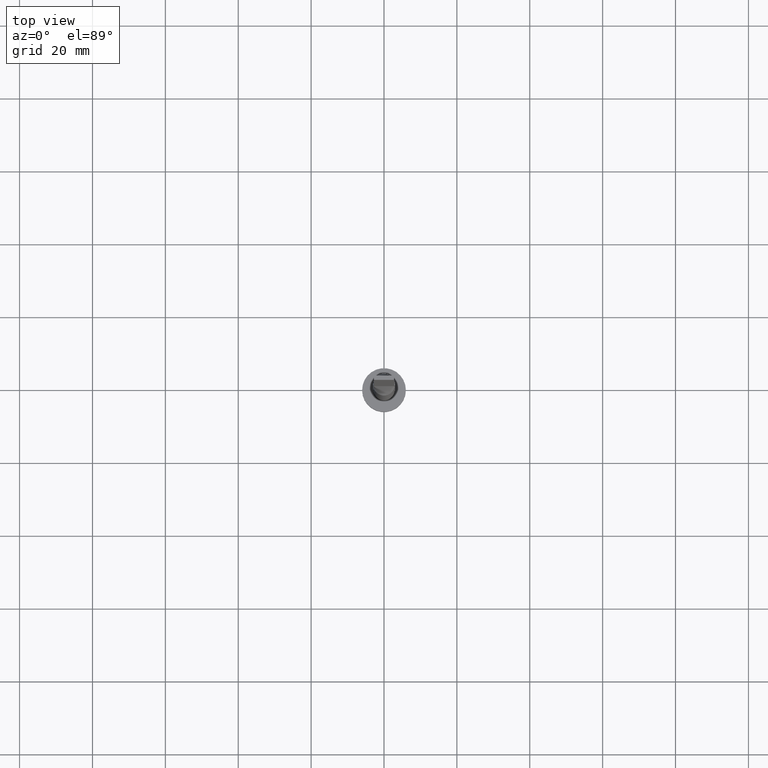
[diagram: clean part render]
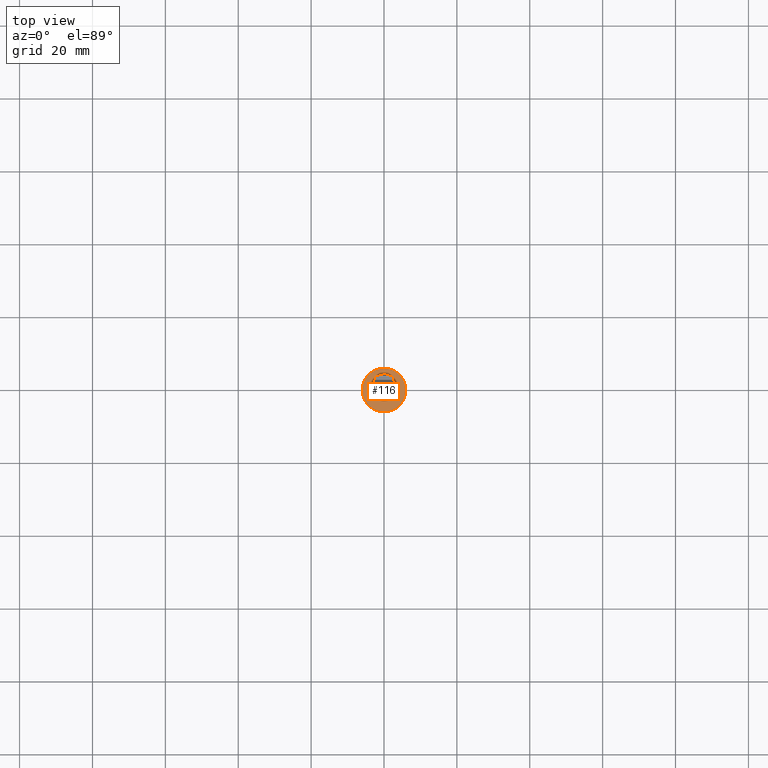
[diagram: same view with one face highlighted and labeled with its STEP entity id]
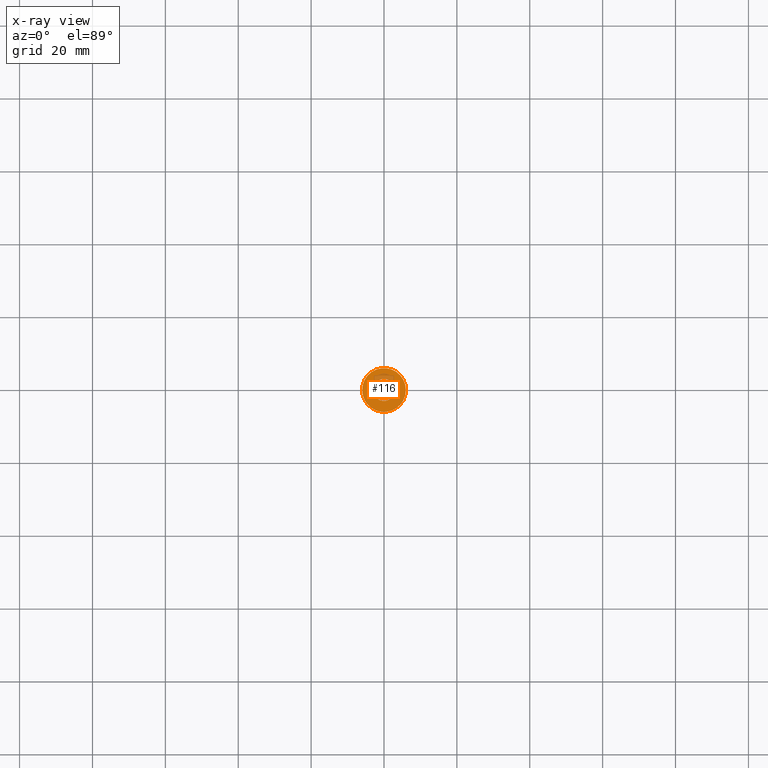
[diagram: x-ray of the same camera — body ghosted, the highlighted face saturated]
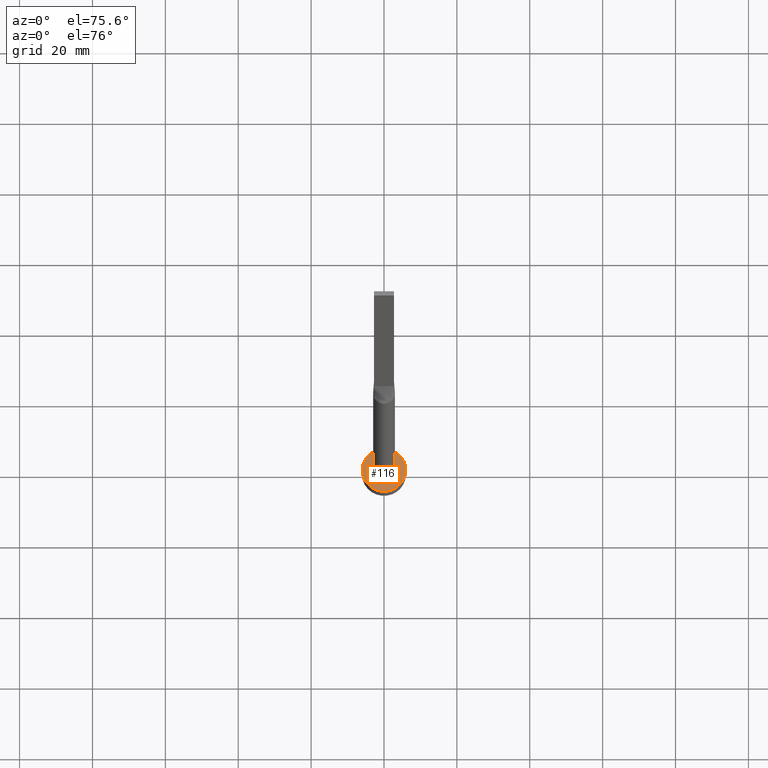
[diagram: same view with one face highlighted and labeled with its STEP entity id]
A machine part, top view. The second image highlights one B-rep face of the part: STEP entity #116.
The next image is the same camera in x-ray: the body ghosted, the highlighted face saturated — about 12% of this face is hidden behind the body in this view.
A second angle (auxiliary view) of the same face is appended — the face is thin or edge-on in the first view.
In plain terms, the highlighted planar face has unit normal (0, 0, 1).
Its self-contained STEP definition (entity closure, byte-faithful):
#12 = CARTESIAN_POINT ( 'NONE',  ( 0.000000000000000000, 0.000000000000000000, 5.000000000000000000 ) ) ;
#23 = DIRECTION ( 'NONE',  ( 0.000000000000000000, 0.000000000000000000, 1.000000000000000000 ) ) ;
#38 = ORIENTED_EDGE ( 'NONE', *, *, #254, .T. ) ;
#67 = CARTESIAN_POINT ( 'NONE',  ( 0.000000000000000000, 0.000000000000000000, 5.000000000000000000 ) ) ;
#70 = PLANE ( 'NONE',  #302 ) ;
#76 = DIRECTION ( 'NONE',  ( 1.000000000000000000, 0.000000000000000000, 0.000000000000000000 ) ) ;
#87 = CARTESIAN_POINT ( 'NONE',  ( 6.000000000000000888, 7.347880794884120722E-16, 5.000000000000000000 ) ) ;
#88 = VERTEX_POINT ( 'NONE', #565 ) ;
#108 = ORIENTED_EDGE ( 'NONE', *, *, #345, .F. ) ;
#113 = DIRECTION ( 'NONE',  ( 1.000000000000000000, 0.000000000000000000, 0.000000000000000000 ) ) ;
#116 = ADVANCED_FACE ( 'NONE', ( #149, #246 ), #70, .T. ) ;
#147 = DIRECTION ( 'NONE',  ( 0.000000000000000000, 0.000000000000000000, 1.000000000000000000 ) ) ;
#149 = FACE_BOUND ( 'NONE', #459, .T. ) ;
#197 = CARTESIAN_POINT ( 'NONE',  ( 0.000000000000000000, 0.000000000000000000, 5.000000000000000000 ) ) ;
#216 = DIRECTION ( 'NONE',  ( 1.000000000000000000, 0.000000000000000000, 0.000000000000000000 ) ) ;
#219 = CARTESIAN_POINT ( 'NONE',  ( 0.000000000000000000, 0.000000000000000000, 5.000000000000000000 ) ) ;
#224 = AXIS2_PLACEMENT_3D ( 'NONE', #270, #256, #76 ) ;
#227 = EDGE_CURVE ( 'NONE', #88, #330, #547, .T. ) ;
#246 = FACE_OUTER_BOUND ( 'NONE', #327, .T. ) ;
#254 = EDGE_CURVE ( 'NONE', #388, #456, #542, .T. ) ;
#256 = DIRECTION ( 'NONE',  ( 0.000000000000000000, 0.000000000000000000, 1.000000000000000000 ) ) ;
#267 = CARTESIAN_POINT ( 'NONE',  ( -6.000000000000000888, 0.000000000000000000, 5.000000000000000000 ) ) ;
#270 = CARTESIAN_POINT ( 'NONE',  ( 0.000000000000000000, 0.000000000000000000, 5.000000000000000000 ) ) ;
#287 = EDGE_CURVE ( 'NONE', #456, #388, #342, .T. ) ;
#288 = DIRECTION ( 'NONE',  ( 0.000000000000000000, 0.000000000000000000, 1.000000000000000000 ) ) ;
#294 = AXIS2_PLACEMENT_3D ( 'NONE', #197, #147, #113 ) ;
#302 = AXIS2_PLACEMENT_3D ( 'NONE', #67, #288, #374 ) ;
#327 = EDGE_LOOP ( 'NONE', ( #453, #38 ) ) ;
#330 = VERTEX_POINT ( 'NONE', #341 ) ;
#341 = CARTESIAN_POINT ( 'NONE',  ( 3.000000000000000444, 3.673940397442060361E-16, 5.000000000000000000 ) ) ;
#342 = CIRCLE ( 'NONE', #397, 6.000000000000000888 ) ;
#345 = EDGE_CURVE ( 'NONE', #330, #88, #441, .T. ) ;
#374 = DIRECTION ( 'NONE',  ( 1.000000000000000000, 0.000000000000000000, -0.000000000000000000 ) ) ;
#388 = VERTEX_POINT ( 'NONE', #87 ) ;
#397 = AXIS2_PLACEMENT_3D ( 'NONE', #219, #475, #216 ) ;
#407 = ORIENTED_EDGE ( 'NONE', *, *, #227, .F. ) ;
#441 = CIRCLE ( 'NONE', #512, 3.000000000000000444 ) ;
#453 = ORIENTED_EDGE ( 'NONE', *, *, #287, .T. ) ;
#456 = VERTEX_POINT ( 'NONE', #267 ) ;
#459 = EDGE_LOOP ( 'NONE', ( #407, #108 ) ) ;
#475 = DIRECTION ( 'NONE',  ( 0.000000000000000000, 0.000000000000000000, 1.000000000000000000 ) ) ;
#512 = AXIS2_PLACEMENT_3D ( 'NONE', #12, #23, #515 ) ;
#515 = DIRECTION ( 'NONE',  ( 1.000000000000000000, 0.000000000000000000, 0.000000000000000000 ) ) ;
#542 = CIRCLE ( 'NONE', #224, 6.000000000000000888 ) ;
#547 = CIRCLE ( 'NONE', #294, 3.000000000000000444 ) ;
#565 = CARTESIAN_POINT ( 'NONE',  ( -3.000000000000000444, 0.000000000000000000, 5.000000000000000000 ) ) ;